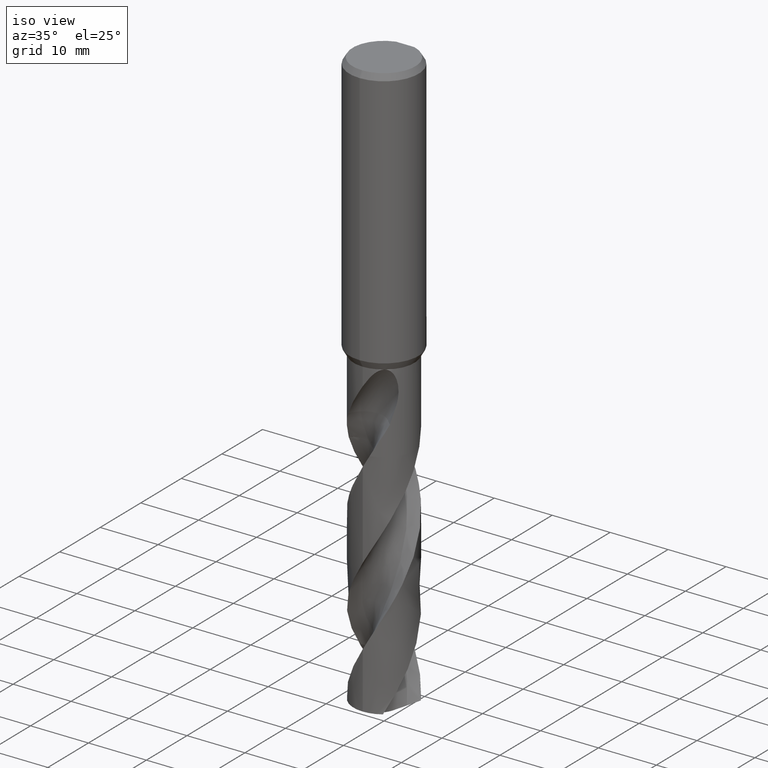
[diagram: clean part render]
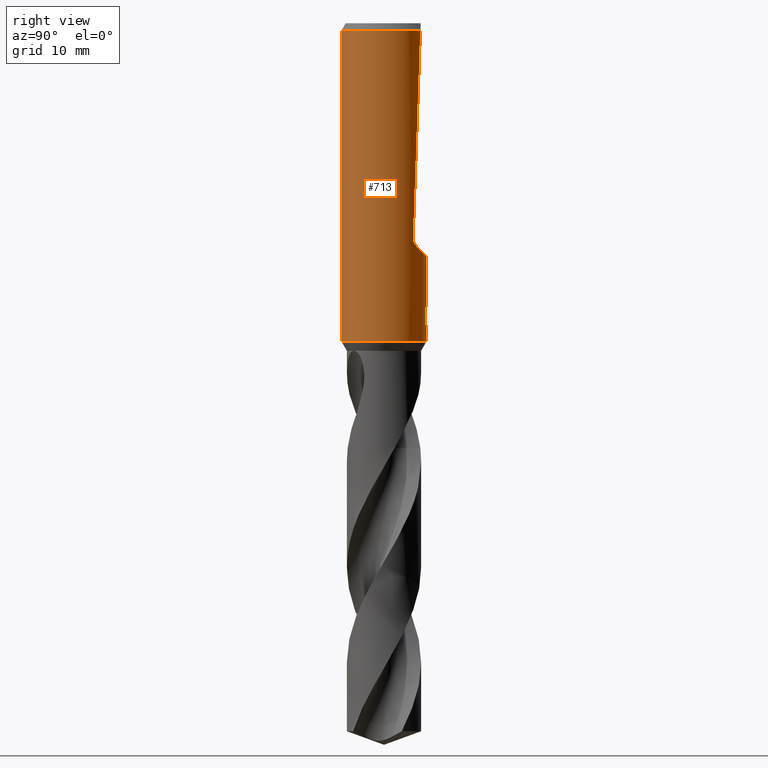
[diagram: tour spotlight — one face highlighted and labeled with its STEP entity id]
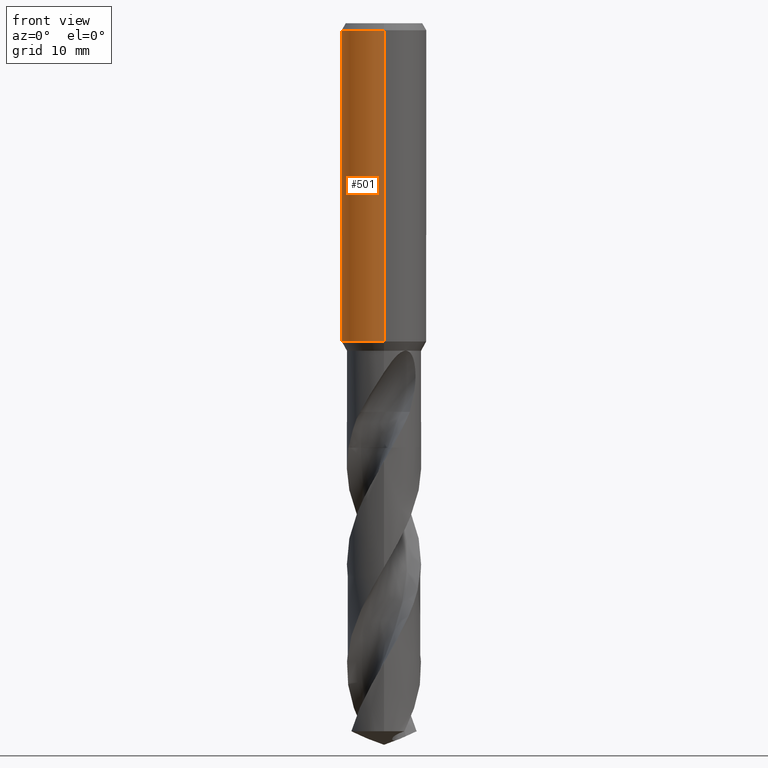
[diagram: tour spotlight — one face highlighted and labeled with its STEP entity id]
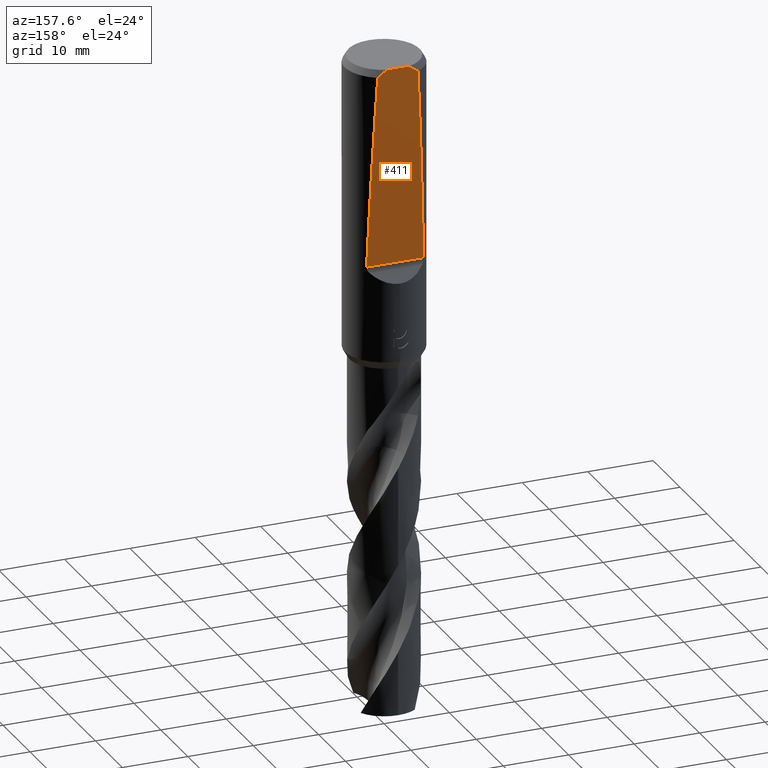
[diagram: tour spotlight — one face highlighted and labeled with its STEP entity id]
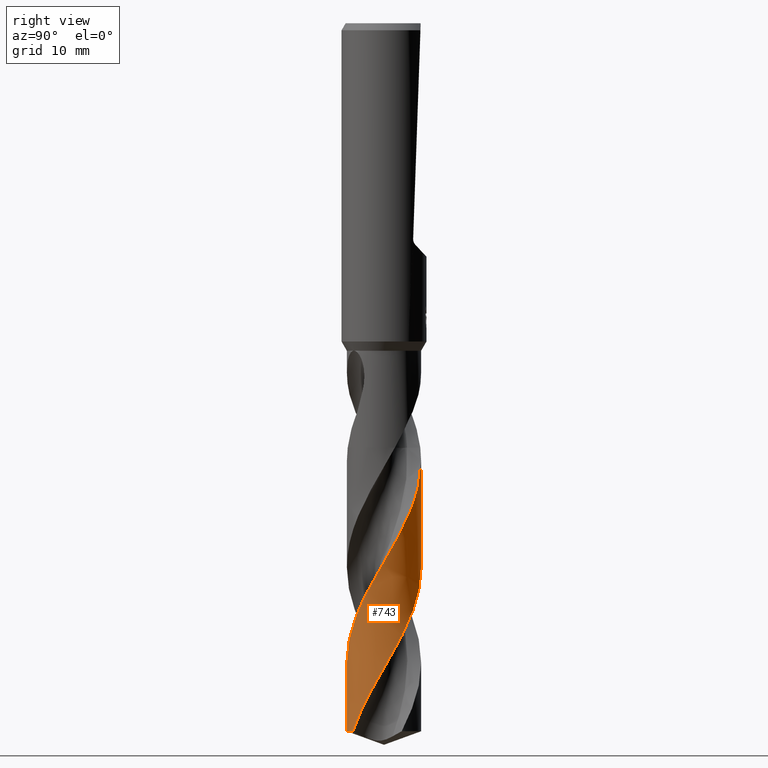
[diagram: tour spotlight — one face highlighted and labeled with its STEP entity id]
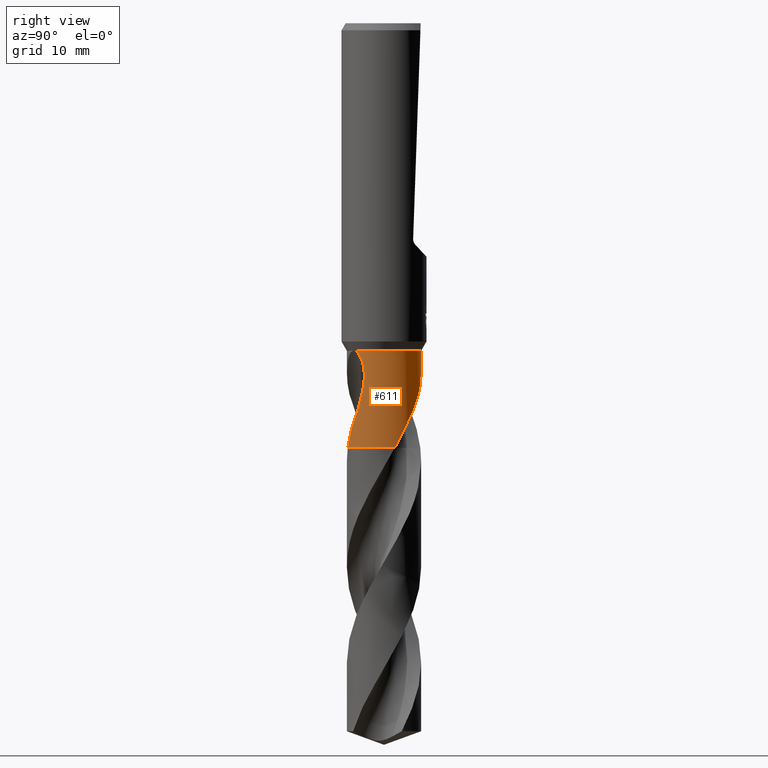
[diagram: tour spotlight — one face highlighted and labeled with its STEP entity id]
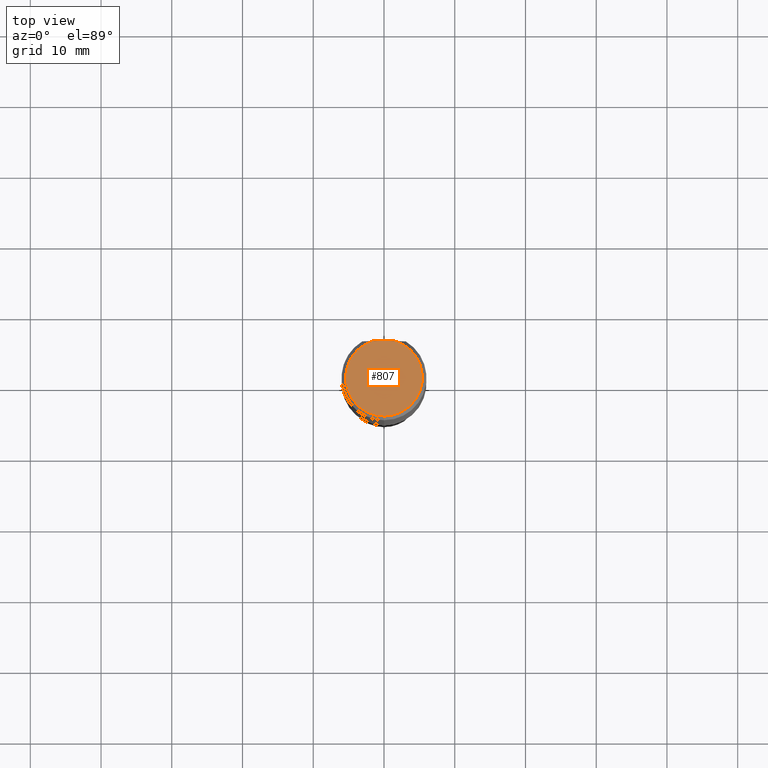
[diagram: tour spotlight — one face highlighted and labeled with its STEP entity id]
A machine part: a face-by-face anatomy tour. The part has 53 B-rep faces; the first image is the clean iso view, then the 6 largest visible faces are spotlighted one at a time (largest first), each with its STEP entity span.

Face 1 — right view, entity #713. In plain terms, the highlighted cylindrical surface (partial cylindrical patch) has radius 6 mm, axis along (-0, -0, 1).
Definition (entity closure, byte-faithful):
#319=VERTEX_POINT('',#906);
#355=EDGE_CURVE('',#393,#681,#945,.T.);
#373=VERTEX_POINT('',#964);
#379=VERTEX_POINT('',#970);
#391=EDGE_CURVE('',#589,#585,#984,.T.);
#393=VERTEX_POINT('',#986);
#503=EDGE_CURVE('',#717,#603,#1109,.T.);
#509=EDGE_CURVE('',#659,#701,#1115,.T.);
#523=EDGE_CURVE('',#585,#877,#1131,.T.);
#571=EDGE_CURVE('',#817,#379,#1180,.T.);
#577=EDGE_CURVE('',#775,#373,#1186,.T.);
#581=EDGE_CURVE('',#373,#393,#1190,.T.);
#585=VERTEX_POINT('',#1194);
#589=VERTEX_POINT('',#1198);
#591=EDGE_CURVE('',#701,#717,#1200,.T.);
#603=VERTEX_POINT('',#1214);
#605=EDGE_CURVE('',#877,#659,#1216,.T.);
#619=EDGE_CURVE('',#379,#319,#1233,.T.);
#653=EDGE_CURVE('',#603,#687,#1268,.T.);
#659=VERTEX_POINT('',#1275);
#677=EDGE_CURVE('',#775,#687,#1295,.T.);
#681=VERTEX_POINT('',#1299);
#687=VERTEX_POINT('',#1306);
#701=VERTEX_POINT('',#1320);
#713=ADVANCED_FACE('',(#1334),#1335,.T.);
#717=VERTEX_POINT('',#1339);
#775=VERTEX_POINT('',#1402);
#791=EDGE_CURVE('',#589,#817,#1420,.T.);
#817=VERTEX_POINT('',#1448);
#847=EDGE_CURVE('',#681,#319,#1481,.T.);
#877=VERTEX_POINT('',#1517);
#906=CARTESIAN_POINT('',(7.34763812293426E-016,-6.0,-1.0));
#945=ELLIPSE('',#1609,171.922250087064,6.0);
#964=CARTESIAN_POINT('',(4.03203957298941,4.44327096651187,-31.3318538858998));
#970=CARTESIAN_POINT('',(7.34763812293426E-016,-6.0,-45.0));
#984=B_SPLINE_CURVE_WITH_KNOTS('',3,(#2196,#2197,#2198,#2199,#2200,#2201,#2202,#2203,#2204,#2205,#2206,#2207,#2208,#2209,#2210,#2211),.UNSPECIFIED.,.F.,.F.,(4,2,2,2,2,2,2,4),(5.86022917063912,6.16870405720903,6.47725847293827,6.78581288866751,7.09436730439676,7.402921720126,7.71116114554584,8.01940057096568),.UNSPECIFIED.);
#986=CARTESIAN_POINT('',(4.36029766032865,4.12162641603196,-30.4715764577818));
#1109=B_SPLINE_CURVE_WITH_KNOTS('',3,(#4422,#4423,#4424,#4425,#4426,#4427,#4428,#4429,#4430,#4431),.UNSPECIFIED.,.F.,.F.,(4,2,2,2,4),(0.616864768993534,0.925297153490302,1.23372953798707,1.54196894672892,1.85020835547076),.UNSPECIFIED.);
#1115=B_SPLINE_CURVE_WITH_KNOTS('',3,(#4498,#4499,#4500,#4501,#4502,#4503,#4504,#4505,#4506,#4507),.UNSPECIFIED.,.F.,.F.,(4,2,2,2,4),(8.01939987363182,8.32763927191416,8.6358786701965,8.94431104401671,9.25274341783691),.UNSPECIFIED.);
#1131=ELLIPSE('',#5181,18.2879674402186,6.0);
#1180=CIRCLE('',#6038,6.0);
#1186=ELLIPSE('',#6130,8.79767511383775,6.0);
#1190=B_SPLINE_CURVE_WITH_KNOTS('',3,(#6135,#6136,#6137,#6138,#6139,#6140,#6141,#6142,#6143,#6144),.UNSPECIFIED.,.F.,.F.,(4,2,2,2,4),(14.9363612949035,15.3656544388401,15.6655052675592,15.9653560962782,16.2652069249973),.UNSPECIFIED.);
#1194=CARTESIAN_POINT('',(0.29010312703583,5.99298257762227,-42.9998328990228));
#1198=CARTESIAN_POINT('',(-1.000126236349E-015,6.0,-43.0310253601033));
#1200=LINE('',#6161,#6162);
#1214=CARTESIAN_POINT('',(0.799431726384364,5.94650392372275,-40.000000276873));
#1216=LINE('',#6207,#6208);
#1233=LINE('',#6464,#6465);
#1268=B_SPLINE_CURVE_WITH_KNOTS('',3,(#6621,#6622,#6623,#6624,#6625,#6626,#6627,#6628,#6629,#6630,#6631,#6632,#6633,#6634,#6635,#6636,#6637,#6638,#6639,#6640,#6641,#6642,#6643,#6644,#6645,#6646,#6647),.UNSPECIFIED.,.F.,.F.,(4,2,3,2,2,2,2,2,2,2,2,2,4),(-0.542204134993822,-0.271102067496911,0.0,0.271102067496911,0.542204134993821,0.813702489471782,1.08520084394974,1.35603748887758,1.62687413380543,1.89790609484719,2.16893805588896,2.43997001693073,2.71100197797249),.UNSPECIFIED.);
#1275=CARTESIAN_POINT('',(0.873560781758956,5.93606701112552,-42.7587351791531));
#1295=LINE('',#6941,#6942);
#1299=CARTESIAN_POINT('',(3.07722195520084,5.15079654407257,-1.0));
#1306=CARTESIAN_POINT('',(4.30282158127811E-015,6.0,-41.0232688117743));
#1320=CARTESIAN_POINT('',(1.33721006514658,5.84909131760402,-42.2901657003257));
#1334=FACE_OUTER_BOUND('',#7045,.T.);
#1335=CYLINDRICAL_SURFACE('',#7046,6.0);
#1339=CARTESIAN_POINT('',(1.33721006514658,5.84909131760402,-40.5150484364821));
#1402=CARTESIAN_POINT('',(-7.34763812293426E-016,6.0,-33.0012413913994));
#1420=LINE('',#8261,#8262);
#1448=CARTESIAN_POINT('',(0.0,6.0,-45.0));
#1481=CIRCLE('',#9062,6.0);
#1517=CARTESIAN_POINT('',(0.873560781758957,5.93606701112552,-41.3198931596091));
#1609=AXIS2_PLACEMENT_3D('',#9182,#9183,#9184);
#2196=CARTESIAN_POINT('',(-1.37942962388976,5.83927854385585,-42.3120938518854));
#2197=CARTESIAN_POINT('',(-1.3197524098915,5.85337626434356,-42.4007460556891));
#2198=CARTESIAN_POINT('',(-1.25213007147997,5.86835238153676,-42.4821006164436));
#2199=CARTESIAN_POINT('',(-1.10815476297052,5.89723538536299,-42.6261133873133));
#2200=CARTESIAN_POINT('',(-1.02679168998259,5.91217036370492,-42.6937759496578));
#2201=CARTESIAN_POINT('',(-0.849449577088966,5.94024368186983,-42.8132077327803));
#2202=CARTESIAN_POINT('',(-0.75347222810614,5.95335623661259,-42.8649855238005));
#2203=CARTESIAN_POINT('',(-0.552969605024409,5.97531551411668,-42.9482857310807));
#2204=CARTESIAN_POINT('',(-0.448275455975639,5.98416266823847,-42.9798740542996));
#2205=CARTESIAN_POINT('',(-0.237398161173605,5.99623180317797,-43.0213727490831));
#2206=CARTESIAN_POINT('',(-0.131212492151728,5.9994467834274,-43.0312723335086));
#2207=CARTESIAN_POINT('',(0.0743831578630581,6.00041865072596,-43.0312723335086));
#2208=CARTESIAN_POINT('',(0.180490238104753,5.99821260764714,-43.021392590677));
#2209=CARTESIAN_POINT('',(0.391259717323761,5.98815890288379,-42.9799476485545));
#2210=CARTESIAN_POINT('',(0.495924498667214,5.98031828233743,-42.948392857806));
#2211=CARTESIAN_POINT('',(0.596162626581452,5.9703090475006,-42.9067743263419));
#4422=CARTESIAN_POINT('',(1.47572255922527,5.81568937686614,-40.7778857706544));
#4423=CARTESIAN_POINT('',(1.43408414695966,5.82625505721574,-40.6776366099009));
#4424=CARTESIAN_POINT('',(1.38231447896357,5.83891732292942,-40.5816487554591));
#4425=CARTESIAN_POINT('',(1.26287133719122,5.86591039891312,-40.404259737123));
#4426=CARTESIAN_POINT('',(1.19518872778899,5.88021296420216,-40.3228604278537));
#4427=CARTESIAN_POINT('',(1.05112183874896,5.90766593069519,-40.1788296843787));
#4428=CARTESIAN_POINT('',(0.969743089830991,5.92179330445672,-40.111188656323));
#4429=CARTESIAN_POINT('',(0.792381475667972,5.94812316600191,-39.9918074082397));
#4430=CARTESIAN_POINT('',(0.696400454612605,5.96029984760923,-39.9400587582751));
#4431=CARTESIAN_POINT('',(0.596162331669374,5.97030907694891,-39.8984402290046));
#4498=CARTESIAN_POINT('',(0.596162353925366,5.97030907472655,-42.9067738917094));
#4499=CARTESIAN_POINT('',(0.696400473442532,5.96029984535159,-42.865155363849));
#4500=CARTESIAN_POINT('',(0.792381491214139,5.94812316388512,-42.8134067156396));
#4501=CARTESIAN_POINT('',(0.969743099309515,5.92179330285852,-42.6940254716034));
#4502=CARTESIAN_POINT('',(1.05112184544356,5.90766592947307,-42.6263844458399));
#4503=CARTESIAN_POINT('',(1.19518872950838,5.8802129638209,-42.4823537072831));
#4504=CARTESIAN_POINT('',(1.26287133655555,5.86591039902768,-42.4009544008203));
#4505=CARTESIAN_POINT('',(1.38231447417469,5.83891732404075,-42.2235653885997));
#4506=CARTESIAN_POINT('',(1.43408414037219,5.82625505882607,-42.1275775374671));
#4507=CARTESIAN_POINT('',(1.47572255119055,5.81568937890493,-42.0273283801715));
#5181=AXIS2_PLACEMENT_3D('',#9374,#9375,#9376);
#6038=AXIS2_PLACEMENT_3D('',#9389,#9390,#9391);
#6130=AXIS2_PLACEMENT_3D('',#9392,#9393,#9394);
#6135=CARTESIAN_POINT('',(3.96813764578173,4.50043149310484,-31.3891492725556));
#6136=CARTESIAN_POINT('',(4.06633287190667,4.41385040073717,-31.3080288859149));
#6137=CARTESIAN_POINT('',(4.15124574691762,4.33301246290296,-31.2067039082796));
#6138=CARTESIAN_POINT('',(4.25828175059035,4.22739406357309,-31.0157579119505));
#6139=CARTESIAN_POINT('',(4.29706731284018,4.18767039691702,-30.9216565987402));
#6140=CARTESIAN_POINT('',(4.34841966946134,4.13432184285693,-30.7205067334657));
#6141=CARTESIAN_POINT('',(4.36098853845955,4.12089540845488,-30.6134061300645));
#6142=CARTESIAN_POINT('',(4.36098853845955,4.12089540845488,-30.4135055775851));
#6143=CARTESIAN_POINT('',(4.34841966946134,4.13432184285693,-30.306404974184));
#6144=CARTESIAN_POINT('',(4.32274349115065,4.160996119887,-30.2058300415468));
#6161=CARTESIAN_POINT('',(1.33721006514658,5.84909131760402,-41.4026070684039));
#6162=VECTOR('',#9396,1.0);
#6207=CARTESIAN_POINT('',(0.873560781758957,5.93606701112552,-42.0393141693811));
#6208=VECTOR('',#9417,1.0);
#6464=CARTESIAN_POINT('',(7.34763812293426E-016,-6.0,-23.0));
#6465=VECTOR('',#9454,1.0);
#6621=CARTESIAN_POINT('',(0.665038279511986,5.96302977409838,-39.8135117776465));
#6622=CARTESIAN_POINT('',(0.728716101835783,5.95592798339707,-39.8772374280006));
#6623=CARTESIAN_POINT('',(0.783974665019777,5.94867668154847,-39.9579557273851));
#6624=CARTESIAN_POINT('',(0.857320507570535,5.93854966257537,-40.1349694534753));
#6625=CARTESIAN_POINT('',(0.875400981188567,5.93579591311343,-40.2312746567545));
#6626=CARTESIAN_POINT('',(0.875400981188567,5.93579591311343,-40.3216420125868));
#6627=CARTESIAN_POINT('',(0.875400981188567,5.93579591311343,-40.4120093684191));
#6628=CARTESIAN_POINT('',(0.857320507570535,5.93854966257537,-40.5083145716983));
#6629=CARTESIAN_POINT('',(0.783974665019777,5.94867668154847,-40.6853282977885));
#6630=CARTESIAN_POINT('',(0.728716101835784,5.95592798339707,-40.766046597173));
#6631=CARTESIAN_POINT('',(0.601267375301349,5.97014194593481,-40.8935910496813));
#6632=CARTESIAN_POINT('',(0.52050089626908,5.97804010501944,-40.9489349030958));
#6633=CARTESIAN_POINT('',(0.343370231624616,5.99082478161003,-41.0224010244896));
#6634=CARTESIAN_POINT('',(0.246995041657254,5.9955970178221,-41.0405166027747));
#6635=CARTESIAN_POINT('',(0.066278235124748,6.00031311449822,-41.0405166027747));
#6636=CARTESIAN_POINT('',(-0.0299950498794653,6.00057849353559,-41.0224799292738));
#6637=CARTESIAN_POINT('',(-0.207070170783241,5.99707961466003,-40.949146253936));
#6638=CARTESIAN_POINT('',(-0.287875322309355,5.99343072940708,-40.8938517989794));
#6639=CARTESIAN_POINT('',(-0.415515670858363,5.98593657913032,-40.7662728045656));
#6640=CARTESIAN_POINT('',(-0.470860335647626,5.98160913098325,-40.6854535363062));
#6641=CARTESIAN_POINT('',(-0.544278095376138,5.97537602271911,-40.5083128294691));
#6642=CARTESIAN_POINT('',(-0.562348199187247,5.97358891311336,-40.4119859996007));
#6643=CARTESIAN_POINT('',(-0.562348199187247,5.97358891311336,-40.2312980255729));
#6644=CARTESIAN_POINT('',(-0.544278095376141,5.97537602271911,-40.1349711957045));
#6645=CARTESIAN_POINT('',(-0.470860335647634,5.98160913098325,-39.9578304888674));
#6646=CARTESIAN_POINT('',(-0.415515670858364,5.98593657913032,-39.8770112206079));
#6647=CARTESIAN_POINT('',(-0.351672492652108,5.98968500489899,-39.8131987305268));
#6941=CARTESIAN_POINT('',(-7.34763812293426E-016,6.0,-23.0));
#6942=VECTOR('',#9494,1.0);
#7045=EDGE_LOOP('',(#9535,#9536,#9537,#9538,#9539,#9540,#9541,#9542,#9543,#9544,#9545,#9546,#9547,#9548,#9549));
#7046=AXIS2_PLACEMENT_3D('',#9550,#9551,#9552);
#8261=CARTESIAN_POINT('',(-7.34763812293426E-016,6.0,-23.0));
#8262=VECTOR('',#9633,1.0);
#9062=AXIS2_PLACEMENT_3D('',#9686,#9687,#9688);
#9182=CARTESIAN_POINT('',(0.0,0.0,-148.49951444483));
#9183=DIRECTION('',(0.0,-0.999390827019096,0.0348994967025007));
#9184=DIRECTION('',(0.0,0.0348994967025007,0.999390827019096));
#9374=CARTESIAN_POINT('',(0.0,0.0,-43.8351219173269));
#9375=DIRECTION('',(0.944648353914092,0.0,-0.328084573619969));
#9376=DIRECTION('',(0.328084573619969,-0.0,0.944648353914092));
#9389=CARTESIAN_POINT('',(0.0,0.0,-45.0));
#9390=DIRECTION('',(0.0,0.0,-1.0));
#9391=DIRECTION('',(0.0,1.0,0.0));
#9392=CARTESIAN_POINT('',(0.0,0.0,-26.5670291312513));
#9393=DIRECTION('',(0.0,-0.73135370161917,-0.681998360062499));
#9394=DIRECTION('',(0.0,0.681998360062499,-0.73135370161917));
#9396=DIRECTION('',(-0.0,-0.0,1.0));
#9417=DIRECTION('',(0.0,0.0,-1.0));
#9454=DIRECTION('',(-0.0,-0.0,1.0));
#9494=DIRECTION('',(0.0,0.0,-1.0));
#9535=ORIENTED_EDGE('',*,*,#677,.F.);
#9536=ORIENTED_EDGE('',*,*,#577,.T.);
#9537=ORIENTED_EDGE('',*,*,#581,.T.);
#9538=ORIENTED_EDGE('',*,*,#355,.T.);
#9539=ORIENTED_EDGE('',*,*,#847,.T.);
#9540=ORIENTED_EDGE('',*,*,#619,.F.);
#9541=ORIENTED_EDGE('',*,*,#571,.F.);
#9542=ORIENTED_EDGE('',*,*,#791,.F.);
#9543=ORIENTED_EDGE('',*,*,#391,.T.);
#9544=ORIENTED_EDGE('',*,*,#523,.T.);
#9545=ORIENTED_EDGE('',*,*,#605,.T.);
#9546=ORIENTED_EDGE('',*,*,#509,.T.);
#9547=ORIENTED_EDGE('',*,*,#591,.T.);
#9548=ORIENTED_EDGE('',*,*,#503,.T.);
#9549=ORIENTED_EDGE('',*,*,#653,.T.);
#9550=CARTESIAN_POINT('',(0.0,0.0,-23.0));
#9551=DIRECTION('',(-0.0,-0.0,1.0));
#9552=DIRECTION('',(0.0,1.0,0.0));
#9633=DIRECTION('',(0.0,0.0,-1.0));
#9686=CARTESIAN_POINT('',(0.0,0.0,-1.0));
#9687=DIRECTION('',(0.0,0.0,-1.0));
#9688=DIRECTION('',(0.0,1.0,0.0));

Face 2 — front view, entity #501. In plain terms, the highlighted cylindrical surface (partial cylindrical patch) has radius 6 mm, axis along (-0, -0, 1).
Definition (entity closure, byte-faithful):
#319=VERTEX_POINT('',#906);
#347=VERTEX_POINT('',#936);
#363=VERTEX_POINT('',#954);
#379=VERTEX_POINT('',#970);
#439=VERTEX_POINT('',#1036);
#441=EDGE_CURVE('',#645,#439,#1038,.T.);
#449=EDGE_CURVE('',#379,#817,#1046,.T.);
#471=EDGE_CURVE('',#319,#561,#1070,.T.);
#501=ADVANCED_FACE('',(#1106),#1107,.T.);
#511=VERTEX_POINT('',#1117);
#535=EDGE_CURVE('',#629,#363,#1144,.T.);
#539=EDGE_CURVE('',#551,#589,#1148,.T.);
#551=VERTEX_POINT('',#1160);
#561=VERTEX_POINT('',#1170);
#589=VERTEX_POINT('',#1198);
#613=EDGE_CURVE('',#511,#775,#1226,.T.);
#619=EDGE_CURVE('',#379,#319,#1233,.T.);
#629=VERTEX_POINT('',#1243);
#645=VERTEX_POINT('',#1260);
#655=EDGE_CURVE('',#347,#551,#1270,.T.);
#677=EDGE_CURVE('',#775,#687,#1295,.T.);
#687=VERTEX_POINT('',#1306);
#729=VERTEX_POINT('',#1351);
#757=EDGE_CURVE('',#687,#629,#1382,.T.);
#775=VERTEX_POINT('',#1402);
#791=EDGE_CURVE('',#589,#817,#1420,.T.);
#799=EDGE_CURVE('',#729,#511,#1429,.T.);
#817=VERTEX_POINT('',#1448);
#831=EDGE_CURVE('',#439,#347,#1462,.T.);
#857=EDGE_CURVE('',#363,#645,#1494,.T.);
#869=EDGE_CURVE('',#561,#729,#1507,.T.);
#906=CARTESIAN_POINT('',(7.34763812293426E-016,-6.0,-1.0));
#936=CARTESIAN_POINT('',(-7.34750035790944E-016,6.0,-41.7128911336578));
#954=CARTESIAN_POINT('',(-0.562333990228013,5.97359025071474,-40.3171221986971));
#970=CARTESIAN_POINT('',(7.34763812293426E-016,-6.0,-45.0));
#1036=CARTESIAN_POINT('',(1.23752563440958E-015,6.0,-41.5000801551881));
#1038=B_SPLINE_CURVE_WITH_KNOTS('',3,(#3059,#3060,#3061,#3062,#3063,#3064,#3065,#3066,#3067,#3068,#3069,#3070,#3071,#3072),.UNSPECIFIED.,.F.,.F.,(4,2,2,2,2,2,4),(3.12901819529899,3.57583262703438,4.02264705876978,4.46946149050517,4.91564920039673,5.36183691028829,5.8097355416915),.UNSPECIFIED.);
#1046=CIRCLE('',#3141,6.0);
#1070=CIRCLE('',#4001,6.0);
#1106=FACE_OUTER_BOUND('',#4418,.T.);
#1107=CYLINDRICAL_SURFACE('',#4419,6.0);
#1117=CARTESIAN_POINT('',(-4.03203957298941,4.44327096651187,-31.3318538858998));
#1144=B_SPLINE_CURVE_WITH_KNOTS('',3,(#5898,#5899,#5900,#5901,#5902,#5903,#5904,#5905,#5906,#5907,#5908,#5909,#5910,#5911,#5912,#5913,#5914,#5915,#5916,#5917,#5918,#5919,#5920,#5921,#5922,#5923,#5924),.UNSPECIFIED.,.F.,.F.,(4,2,3,2,2,2,2,2,2,2,2,2,4),(-0.542204134993822,-0.271102067496911,0.0,0.271102067496911,0.542204134993821,0.813702489471782,1.08520084394974,1.35603748887758,1.62687413380543,1.89790609484719,2.16893805588896,2.43997001693073,2.71100197797249),.UNSPECIFIED.);
#1148=B_SPLINE_CURVE_WITH_KNOTS('',3,(#5929,#5930,#5931,#5932,#5933,#5934,#5935,#5936,#5937,#5938,#5939,#5940,#5941,#5942,#5943,#5944),.UNSPECIFIED.,.F.,.F.,(4,2,2,2,2,2,2,4),(5.86022917063912,6.16870405720903,6.47725847293827,6.78581288866751,7.09436730439676,7.402921720126,7.71116114554584,8.01940057096568),.UNSPECIFIED.);
#1160=CARTESIAN_POINT('',(-1.337052752443,5.84912727996105,-42.3720803908795));
#1170=CARTESIAN_POINT('',(-3.07722195520084,5.15079654407257,-1.0));
#1198=CARTESIAN_POINT('',(-1.000126236349E-015,6.0,-43.0310253601033));
#1226=ELLIPSE('',#6221,8.79767511383775,6.0);
#1233=LINE('',#6464,#6465);
#1243=CARTESIAN_POINT('',(-0.486378944383043,5.98025380083996,-40.6432837483006));
#1260=CARTESIAN_POINT('',(-1.0350734039088,5.91004425097822,-40.3171221986971));
#1270=ELLIPSE('',#6650,6.68957059225716,6.0);
#1295=LINE('',#6941,#6942);
#1306=CARTESIAN_POINT('',(4.30282158127811E-015,6.0,-41.0232688117743));
#1351=CARTESIAN_POINT('',(-4.36029766032865,4.12162641603196,-30.4715764577818));
#1382=B_SPLINE_CURVE_WITH_KNOTS('',3,(#7146,#7147,#7148,#7149,#7150,#7151,#7152,#7153,#7154,#7155,#7156,#7157,#7158,#7159,#7160,#7161,#7162,#7163,#7164,#7165,#7166,#7167,#7168,#7169,#7170,#7171,#7172),.UNSPECIFIED.,.F.,.F.,(4,2,3,2,2,2,2,2,2,2,2,2,4),(-0.542204134993822,-0.271102067496911,0.0,0.271102067496911,0.542204134993821,0.813702489471782,1.08520084394974,1.35603748887758,1.62687413380543,1.89790609484719,2.16893805588896,2.43997001693073,2.71100197797249),.UNSPECIFIED.);
#1402=CARTESIAN_POINT('',(-7.34763812293426E-016,6.0,-33.0012413913994));
#1420=LINE('',#8261,#8262);
#1429=B_SPLINE_CURVE_WITH_KNOTS('',3,(#8272,#8273,#8274,#8275,#8276,#8277,#8278,#8279,#8280,#8281),.UNSPECIFIED.,.F.,.F.,(4,2,2,2,4),(5.02193453670703,5.32178536542608,5.62163619414512,5.92148702286417,6.35078016680085),.UNSPECIFIED.);
#1448=CARTESIAN_POINT('',(0.0,6.0,-45.0));
#1462=LINE('',#8404,#8405);
#1494=CIRCLE('',#9080,6.0);
#1507=ELLIPSE('',#9105,171.922250087064,6.0);
#3059=CARTESIAN_POINT('',(-0.94480385302947,5.92514520322504,-39.872959764165));
#3060=CARTESIAN_POINT('',(-1.00527134460613,5.91550326140901,-40.018714084793));
#3061=CARTESIAN_POINT('',(-1.03510901790186,5.91003801350366,-40.177363716821));
#3062=CARTESIAN_POINT('',(-1.03510901790186,5.91003801350366,-40.4752400046446));
#3063=CARTESIAN_POINT('',(-1.00527134460613,5.91550326140901,-40.6338896366726));
#3064=CARTESIAN_POINT('',(-0.884336361452813,5.93478714504107,-40.9253982779286));
#3065=CARTESIAN_POINT('',(-0.793255124431118,5.94827036688117,-41.0582860460074));
#3066=CARTESIAN_POINT('',(-0.583383143066729,5.97250423473111,-41.2679818745928));
#3067=CARTESIAN_POINT('',(-0.450548678141594,5.98483728073992,-41.3589178059373));
#3068=CARTESIAN_POINT('',(-0.159231245503483,5.9996597235035,-41.4796190611952));
#3069=CARTESIAN_POINT('',(-0.000726257391805651,6.00184303846568,-41.5093686300866));
#3070=CARTESIAN_POINT('',(0.297211894038787,5.99449376042891,-41.5093686300866));
#3071=CARTESIAN_POINT('',(0.455980995840601,5.98444103025712,-41.4794145753496));
#3072=CARTESIAN_POINT('',(0.601711422200172,5.96975237044166,-41.418892629059));
#3141=AXIS2_PLACEMENT_3D('',#9260,#9261,#9262);
#4001=AXIS2_PLACEMENT_3D('',#9286,#9287,#9288);
#4418=EDGE_LOOP('',(#9340,#9341,#9342,#9343,#9344,#9345,#9346,#9347,#9348,#9349,#9350,#9351,#9352,#9353,#9354));
#4419=AXIS2_PLACEMENT_3D('',#9355,#9356,#9357);
#5898=CARTESIAN_POINT('',(0.665038279511986,5.96302977409838,-39.8135117776465));
#5899=CARTESIAN_POINT('',(0.728716101835783,5.95592798339707,-39.8772374280006));
#5900=CARTESIAN_POINT('',(0.783974665019777,5.94867668154847,-39.9579557273851));
#5901=CARTESIAN_POINT('',(0.857320507570535,5.93854966257537,-40.1349694534753));
#5902=CARTESIAN_POINT('',(0.875400981188567,5.93579591311343,-40.2312746567545));
#5903=CARTESIAN_POINT('',(0.875400981188567,5.93579591311343,-40.3216420125868));
#5904=CARTESIAN_POINT('',(0.875400981188567,5.93579591311343,-40.4120093684191));
#5905=CARTESIAN_POINT('',(0.857320507570535,5.93854966257537,-40.5083145716983));
#5906=CARTESIAN_POINT('',(0.783974665019777,5.94867668154847,-40.6853282977885));
#5907=CARTESIAN_POINT('',(0.728716101835784,5.95592798339707,-40.766046597173));
#5908=CARTESIAN_POINT('',(0.601267375301349,5.97014194593481,-40.8935910496813));
#5909=CARTESIAN_POINT('',(0.52050089626908,5.97804010501944,-40.9489349030958));
#5910=CARTESIAN_POINT('',(0.343370231624616,5.99082478161003,-41.0224010244896));
#5911=CARTESIAN_POINT('',(0.246995041657254,5.9955970178221,-41.0405166027747));
#5912=CARTESIAN_POINT('',(0.066278235124748,6.00031311449822,-41.0405166027747));
#5913=CARTESIAN_POINT('',(-0.0299950498794653,6.00057849353559,-41.0224799292738));
#5914=CARTESIAN_POINT('',(-0.207070170783241,5.99707961466003,-40.949146253936));
#5915=CARTESIAN_POINT('',(-0.287875322309355,5.99343072940708,-40.8938517989794));
#5916=CARTESIAN_POINT('',(-0.415515670858363,5.98593657913032,-40.7662728045656));
#5917=CARTESIAN_POINT('',(-0.470860335647626,5.98160913098325,-40.6854535363062));
#5918=CARTESIAN_POINT('',(-0.544278095376138,5.97537602271911,-40.5083128294691));
#5919=CARTESIAN_POINT('',(-0.562348199187247,5.97358891311336,-40.4119859996007));
#5920=CARTESIAN_POINT('',(-0.562348199187247,5.97358891311336,-40.2312980255729));
#5921=CARTESIAN_POINT('',(-0.544278095376141,5.97537602271911,-40.1349711957045));
#5922=CARTESIAN_POINT('',(-0.470860335647634,5.98160913098325,-39.9578304888674));
#5923=CARTESIAN_POINT('',(-0.415515670858364,5.98593657913032,-39.8770112206079));
#5924=CARTESIAN_POINT('',(-0.351672492652108,5.98968500489899,-39.8131987305268));
#5929=CARTESIAN_POINT('',(-1.37942962388976,5.83927854385585,-42.3120938518854));
#5930=CARTESIAN_POINT('',(-1.3197524098915,5.85337626434356,-42.4007460556891));
#5931=CARTESIAN_POINT('',(-1.25213007147997,5.86835238153676,-42.4821006164436));
#5932=CARTESIAN_POINT('',(-1.10815476297052,5.89723538536299,-42.6261133873133));
#5933=CARTESIAN_POINT('',(-1.02679168998259,5.91217036370492,-42.6937759496578));
#5934=CARTESIAN_POINT('',(-0.849449577088966,5.94024368186983,-42.8132077327803));
#5935=CARTESIAN_POINT('',(-0.75347222810614,5.95335623661259,-42.8649855238005));
#5936=CARTESIAN_POINT('',(-0.552969605024409,5.97531551411668,-42.9482857310807));
#5937=CARTESIAN_POINT('',(-0.448275455975639,5.98416266823847,-42.9798740542996));
#5938=CARTESIAN_POINT('',(-0.237398161173605,5.99623180317797,-43.0213727490831));
#5939=CARTESIAN_POINT('',(-0.131212492151728,5.9994467834274,-43.0312723335086));
#5940=CARTESIAN_POINT('',(0.0743831578630581,6.00041865072596,-43.0312723335086));
#5941=CARTESIAN_POINT('',(0.180490238104753,5.99821260764714,-43.021392590677));
#5942=CARTESIAN_POINT('',(0.391259717323761,5.98815890288379,-42.9799476485545));
#5943=CARTESIAN_POINT('',(0.495924498667214,5.98031828233743,-42.948392857806));
#5944=CARTESIAN_POINT('',(0.596162626581452,5.9703090475006,-42.9067743263419));
#6221=AXIS2_PLACEMENT_3D('',#9446,#9447,#9448);
#6464=CARTESIAN_POINT('',(7.34763812293426E-016,-6.0,-23.0));
#6465=VECTOR('',#9454,1.0);
#6650=AXIS2_PLACEMENT_3D('',#9464,#9465,#9466);
#6941=CARTESIAN_POINT('',(-7.34763812293426E-016,6.0,-23.0));
#6942=VECTOR('',#9494,1.0);
#7146=CARTESIAN_POINT('',(0.665038279511986,5.96302977409838,-39.8135117776465));
#7147=CARTESIAN_POINT('',(0.728716101835783,5.95592798339707,-39.8772374280006));
#7148=CARTESIAN_POINT('',(0.783974665019777,5.94867668154847,-39.9579557273851));
#7149=CARTESIAN_POINT('',(0.857320507570535,5.93854966257537,-40.1349694534753));
#7150=CARTESIAN_POINT('',(0.875400981188567,5.93579591311343,-40.2312746567545));
#7151=CARTESIAN_POINT('',(0.875400981188567,5.93579591311343,-40.3216420125868));
#7152=CARTESIAN_POINT('',(0.875400981188567,5.93579591311343,-40.4120093684191));
#7153=CARTESIAN_POINT('',(0.857320507570535,5.93854966257537,-40.5083145716983));
#7154=CARTESIAN_POINT('',(0.783974665019777,5.94867668154847,-40.6853282977885));
#7155=CARTESIAN_POINT('',(0.728716101835784,5.95592798339707,-40.766046597173));
#7156=CARTESIAN_POINT('',(0.601267375301349,5.97014194593481,-40.8935910496813));
#7157=CARTESIAN_POINT('',(0.52050089626908,5.97804010501944,-40.9489349030958));
#7158=CARTESIAN_POINT('',(0.343370231624616,5.99082478161003,-41.0224010244896));
#7159=CARTESIAN_POINT('',(0.246995041657254,5.9955970178221,-41.0405166027747));
#7160=CARTESIAN_POINT('',(0.066278235124748,6.00031311449822,-41.0405166027747));
#7161=CARTESIAN_POINT('',(-0.0299950498794653,6.00057849353559,-41.0224799292738));
#7162=CARTESIAN_POINT('',(-0.207070170783241,5.99707961466003,-40.949146253936));
#7163=CARTESIAN_POINT('',(-0.287875322309355,5.99343072940708,-40.8938517989794));
#7164=CARTESIAN_POINT('',(-0.415515670858363,5.98593657913032,-40.7662728045656));
#7165=CARTESIAN_POINT('',(-0.470860335647626,5.98160913098325,-40.6854535363062));
#7166=CARTESIAN_POINT('',(-0.544278095376138,5.97537602271911,-40.5083128294691));
#7167=CARTESIAN_POINT('',(-0.562348199187247,5.97358891311336,-40.4119859996007));
#7168=CARTESIAN_POINT('',(-0.562348199187247,5.97358891311336,-40.2312980255729));
#7169=CARTESIAN_POINT('',(-0.544278095376141,5.97537602271911,-40.1349711957045));
#7170=CARTESIAN_POINT('',(-0.470860335647634,5.98160913098325,-39.9578304888674));
#7171=CARTESIAN_POINT('',(-0.415515670858364,5.98593657913032,-39.8770112206079));
#7172=CARTESIAN_POINT('',(-0.351672492652108,5.98968500489899,-39.8131987305268));
#8261=CARTESIAN_POINT('',(-7.34763812293426E-016,6.0,-23.0));
#8262=VECTOR('',#9633,1.0);
#8272=CARTESIAN_POINT('',(-4.32274349115065,4.160996119887,-30.2058300415468));
#8273=CARTESIAN_POINT('',(-4.34841966946134,4.13432184285692,-30.306404974184));
#8274=CARTESIAN_POINT('',(-4.36098853845955,4.12089540845488,-30.4135055775851));
#8275=CARTESIAN_POINT('',(-4.36098853845955,4.12089540845488,-30.6134061300645));
#8276=CARTESIAN_POINT('',(-4.34841966946134,4.13432184285693,-30.7205067334656));
#8277=CARTESIAN_POINT('',(-4.29706731284018,4.18767039691702,-30.9216565987401));
#8278=CARTESIAN_POINT('',(-4.25828175059035,4.22739406357309,-31.0157579119505));
#8279=CARTESIAN_POINT('',(-4.15124574691762,4.33301246290296,-31.2067039082796));
#8280=CARTESIAN_POINT('',(-4.06633287190667,4.41385040073717,-31.3080288859149));
#8281=CARTESIAN_POINT('',(-3.96813764578173,4.50043149310483,-31.3891492725556));
#8404=CARTESIAN_POINT('',(-7.34763812293426E-016,6.0,-23.0));
#8405=VECTOR('',#9656,1.0);
#9080=AXIS2_PLACEMENT_3D('',#9712,#9713,#9714);
#9105=AXIS2_PLACEMENT_3D('',#9727,#9728,#9729);
#9260=CARTESIAN_POINT('',(0.0,0.0,-45.0));
#9261=DIRECTION('',(0.0,0.0,-1.0));
#9262=DIRECTION('',(0.0,1.0,0.0));
#9286=CARTESIAN_POINT('',(0.0,0.0,-1.0));
#9287=DIRECTION('',(0.0,0.0,-1.0));
#9288=DIRECTION('',(0.0,1.0,0.0));
#9340=ORIENTED_EDGE('',*,*,#677,.T.);
#9341=ORIENTED_EDGE('',*,*,#757,.T.);
#9342=ORIENTED_EDGE('',*,*,#535,.T.);
#9343=ORIENTED_EDGE('',*,*,#857,.T.);
#9344=ORIENTED_EDGE('',*,*,#441,.T.);
#9345=ORIENTED_EDGE('',*,*,#831,.T.);
#9346=ORIENTED_EDGE('',*,*,#655,.T.);
#9347=ORIENTED_EDGE('',*,*,#539,.T.);
#9348=ORIENTED_EDGE('',*,*,#791,.T.);
#9349=ORIENTED_EDGE('',*,*,#449,.F.);
#9350=ORIENTED_EDGE('',*,*,#619,.T.);
#9351=ORIENTED_EDGE('',*,*,#471,.T.);
#9352=ORIENTED_EDGE('',*,*,#869,.T.);
#9353=ORIENTED_EDGE('',*,*,#799,.T.);
#9354=ORIENTED_EDGE('',*,*,#613,.T.);
#9355=CARTESIAN_POINT('',(0.0,0.0,-23.0));
#9356=DIRECTION('',(-0.0,-0.0,1.0));
#9357=DIRECTION('',(0.0,1.0,0.0));
#9446=CARTESIAN_POINT('',(0.0,0.0,-26.5670291312513));
#9447=DIRECTION('',(0.0,-0.73135370161917,-0.681998360062499));
#9448=DIRECTION('',(0.0,0.681998360062499,-0.73135370161917));
#9454=DIRECTION('',(-0.0,-0.0,1.0));
#9464=CARTESIAN_POINT('',(0.0,0.0,-41.7128911336578));
#9465=DIRECTION('',(-0.442195774284071,0.0,0.896918556617774));
#9466=DIRECTION('',(0.896918556617774,-0.0,0.442195774284071));
#9494=DIRECTION('',(0.0,0.0,-1.0));
#9633=DIRECTION('',(0.0,0.0,-1.0));
#9656=DIRECTION('',(0.0,0.0,-1.0));
#9712=CARTESIAN_POINT('',(0.0,0.0,-40.3171221986971));
#9713=DIRECTION('',(0.0,-0.0,1.0));
#9714=DIRECTION('',(0.0,1.0,0.0));
#9727=CARTESIAN_POINT('',(0.0,0.0,-148.49951444483));
#9728=DIRECTION('',(0.0,-0.999390827019096,0.0348994967025007));
#9729=DIRECTION('',(0.0,0.0348994967025007,0.999390827019096));

Face 3 — auxiliary view, entity #411. In plain terms, the highlighted planar face has unit normal (0, -0.9994, 0.0349).
Definition (entity closure, byte-faithful):
#355=EDGE_CURVE('',#393,#681,#945,.T.);
#393=VERTEX_POINT('',#986);
#411=ADVANCED_FACE('',(#1006),#1007,.F.);
#417=EDGE_CURVE('',#681,#737,#1013,.T.);
#457=EDGE_CURVE('',#737,#767,#1055,.T.);
#491=EDGE_CURVE('',#767,#561,#1095,.T.);
#561=VERTEX_POINT('',#1170);
#681=VERTEX_POINT('',#1299);
#729=VERTEX_POINT('',#1351);
#737=VERTEX_POINT('',#1360);
#753=EDGE_CURVE('',#729,#393,#1378,.T.);
#767=VERTEX_POINT('',#1392);
#869=EDGE_CURVE('',#561,#729,#1507,.T.);
#945=ELLIPSE('',#1609,171.922250087064,6.0);
#986=CARTESIAN_POINT('',(4.36029766032865,4.12162641603196,-30.4715764577818));
#1006=FACE_OUTER_BOUND('',#2297,.T.);
#1007=PLANE('',#2298);
#1013=(B_SPLINE_CURVE(2,(#2306,#2307,#2308),.UNSPECIFIED.,.F.,.F.)B_SPLINE_CURVE_WITH_KNOTS((3,3),(0.0,1.7999237201748),.UNSPECIFIED.)RATIONAL_B_SPLINE_CURVE((1.0,1.00772697155425,1.0))BOUNDED_CURVE()REPRESENTATION_ITEM('')GEOMETRIC_REPRESENTATION_ITEM()CURVE());
#1055=LINE('',#3213,#3214);
#1095=(B_SPLINE_CURVE(2,(#4388,#4389,#4390),.UNSPECIFIED.,.F.,.F.)B_SPLINE_CURVE_WITH_KNOTS((3,3),(0.0,1.7999237201748),.UNSPECIFIED.)RATIONAL_B_SPLINE_CURVE((1.0,1.00772697155425,1.0))BOUNDED_CURVE()REPRESENTATION_ITEM('')GEOMETRIC_REPRESENTATION_ITEM()CURVE());
#1170=CARTESIAN_POINT('',(-3.07722195520084,5.15079654407257,-1.0));
#1299=CARTESIAN_POINT('',(3.07722195520084,5.15079654407257,-1.0));
#1351=CARTESIAN_POINT('',(-4.36029766032865,4.12162641603196,-30.4715764577818));
#1360=CARTESIAN_POINT('',(1.58539144909296,5.18571731356432,0.0));
#1378=LINE('',#7140,#7141);
#1392=CARTESIAN_POINT('',(-1.58539144909296,5.18571731356432,0.0));
#1507=ELLIPSE('',#9105,171.922250087064,6.0);
#1609=AXIS2_PLACEMENT_3D('',#9182,#9183,#9184);
#2297=EDGE_LOOP('',(#9233,#9234,#9235,#9236,#9237,#9238));
#2298=AXIS2_PLACEMENT_3D('',#9239,#9240,#9241);
#2306=CARTESIAN_POINT('',(3.07722195520083,5.15079654407257,-0.999999999999998));
#2307=CARTESIAN_POINT('',(2.29569213962649,5.17384348132745,-0.340022067373843));
#2308=CARTESIAN_POINT('',(1.58539144909296,5.18571731356432,1.77635683940025E-015));
#3213=CARTESIAN_POINT('',(-3.0,5.18571731356432,0.0));
#3214=VECTOR('',#9273,1.0);
#4388=CARTESIAN_POINT('',(-1.58539144909296,5.18571731356432,1.77635683940025E-015));
#4389=CARTESIAN_POINT('',(-2.29569213962649,5.17384348132745,-0.340022067373843));
#4390=CARTESIAN_POINT('',(-3.07722195520083,5.15079654407257,-0.999999999999998));
#7140=CARTESIAN_POINT('',(-6.0,4.12162641603196,-30.4715764577818));
#7141=VECTOR('',#9603,1.0);
#9105=AXIS2_PLACEMENT_3D('',#9727,#9728,#9729);
#9182=CARTESIAN_POINT('',(0.0,0.0,-148.49951444483));
#9183=DIRECTION('',(0.0,-0.999390827019096,0.0348994967025007));
#9184=DIRECTION('',(0.0,0.0348994967025007,0.999390827019096));
#9233=ORIENTED_EDGE('',*,*,#869,.F.);
#9234=ORIENTED_EDGE('',*,*,#491,.F.);
#9235=ORIENTED_EDGE('',*,*,#457,.F.);
#9236=ORIENTED_EDGE('',*,*,#417,.F.);
#9237=ORIENTED_EDGE('',*,*,#355,.F.);
#9238=ORIENTED_EDGE('',*,*,#753,.F.);
#9239=CARTESIAN_POINT('',(-6.0,4.12162641603196,-30.4715764577818));
#9240=DIRECTION('',(0.0,-0.999390827019096,0.0348994967025007));
#9241=DIRECTION('',(0.0,-0.0348994967025007,-0.999390827019096));
#9273=DIRECTION('',(-1.0,0.0,0.0));
#9603=DIRECTION('',(1.0,0.0,0.0));
#9727=CARTESIAN_POINT('',(0.0,0.0,-148.49951444483));
#9728=DIRECTION('',(0.0,-0.999390827019096,0.0348994967025007));
#9729=DIRECTION('',(0.0,0.0348994967025007,0.999390827019096));

Face 4 — right view, entity #743. In plain terms, the highlighted conical surface has half-angle 0 deg.
Definition (entity closure, byte-faithful):
#333=VERTEX_POINT('',#920);
#389=VERTEX_POINT('',#982);
#429=VERTEX_POINT('',#1025);
#483=EDGE_CURVE('',#579,#389,#1087,.T.);
#579=VERTEX_POINT('',#1188);
#607=EDGE_CURVE('',#721,#389,#1218,.T.);
#647=EDGE_CURVE('',#429,#333,#1262,.T.);
#673=EDGE_CURVE('',#579,#333,#1290,.T.);
#709=EDGE_CURVE('',#429,#721,#1329,.T.);
#721=VERTEX_POINT('',#1343);
#743=ADVANCED_FACE('',(#1367),#1368,.T.);
#920=CARTESIAN_POINT('',(-3.99557632968192E-013,5.24994219249677,-76.914615962995));
#982=CARTESIAN_POINT('',(1.27559778750897E-014,-5.24997576509353,-90.3735867401727));
#1025=CARTESIAN_POINT('',(2.89010516153189,-4.38289768934739,-100.089156270102));
#1087=B_SPLINE_CURVE_WITH_KNOTS('',3,(#4255,#4256,#4257,#4258,#4259,#4260,#4261,#4262,#4263,#4264,#4265,#4266,#4267,#4268,#4269,#4270,#4271,#4272,#4273,#4274,#4275,#4276,#4277,#4278,#4279,#4280,#4281,#4282,#4283,#4284,#4285,#4286,#4287,#4288,#4289,#4290,#4291,#4292,#4293,#4294,#4295,#4296,#4297,#4298,#4299,#4300,#4301,#4302,#4303,#4304,#4305,#4306,#4307,#4308,#4309,#4310,#4311,#4312,#4313,#4314,#4315,#4316),.UNSPECIFIED.,.F.,.F.,(4,2,2,2,2,2,2,2,2,2,2,2,2,2,2,2,2,2,2,2,2,2,2,2,2,2,2,2,2,2,4),(0.0,1.43060314434761,2.92107774517278,3.93674834978185,4.94065951060769,6.95678050686233,8.971445917565,10.9987850055238,11.4971904237662,13.5058843374096,15.5315992494196,17.5543432889387,18.555593373722,20.5702694084734,22.585986698096,24.6132271326786,25.1111540778835,27.1192364024182,28.1339156774589,28.1998877990165,29.9749145222559,30.9912414681359,31.9428991467248,33.7281285361591,34.5162879964724,35.2510176391117,38.0053058009303,39.0431653431453,40.8664623532238,42.2362278247418,46.3577027559565),.UNSPECIFIED.);
#1188=CARTESIAN_POINT('',(1.27554686887636E-012,5.24990479078902,-61.9205869078802));
#1218=LINE('',#6211,#6212);
#1262=B_SPLINE_CURVE_WITH_KNOTS('',3,(#6553,#6554,#6555,#6556,#6557,#6558,#6559,#6560,#6561,#6562,#6563,#6564,#6565,#6566,#6567,#6568,#6569,#6570,#6571,#6572,#6573,#6574,#6575,#6576,#6577,#6578,#6579,#6580,#6581,#6582,#6583,#6584,#6585,#6586,#6587,#6588,#6589,#6590,#6591,#6592,#6593,#6594,#6595,#6596,#6597,#6598,#6599,#6600,#6601,#6602,#6603,#6604,#6605,#6606,#6607,#6608,#6609,#6610,#6611,#6612,#6613,#6614),.UNSPECIFIED.,.F.,.F.,(4,2,2,2,2,2,2,2,2,2,2,2,2,2,2,2,2,2,2,2,2,2,2,2,2,2,2,2,2,2,4),(0.0,1.69604232870871,3.95654358310878,5.19424048700817,7.99021996173162,8.06944460139721,10.6110201567379,12.7712613903553,14.6149238411944,14.9937037802023,17.5298628722732,18.9675540739511,20.3103981958802,21.5507102394701,21.5927762917613,24.2844902292219,25.3615338924344,27.9003643143059,28.7134259026979,31.2438126245898,32.2936119003309,34.4539283220425,35.5286100075311,38.260506600375,38.7620579934212,40.5469263383579,41.2682177719664,42.5284914741997,44.4265997278684,44.8999662001482,46.3159475083478),.UNSPECIFIED.);
#1290=LINE('',#6934,#6935);
#1329=CIRCLE('',#7040,5.25);
#1343=CARTESIAN_POINT('',(6.42918335756698E-016,-5.25,-100.089156270102));
#1367=FACE_OUTER_BOUND('',#7096,.T.);
#1368=CONICAL_SURFACE('',#7097,5.24995,2.49444012554929E-006);
#4255=CARTESIAN_POINT('',(-1.10257892316849,5.13281305100534,-60.0033746492053));
#4256=CARTESIAN_POINT('',(-0.86861842229458,5.18307112902339,-60.4158542572184));
#4257=CARTESIAN_POINT('',(-0.631669564088077,5.21723630956749,-60.8281292312319));
#4258=CARTESIAN_POINT('',(-0.145173968107774,5.25379730945892,-61.6706969493388));
#4259=CARTESIAN_POINT('',(0.104223566283353,5.25478514273103,-62.0998785758849));
#4260=CARTESIAN_POINT('',(0.522371119869458,5.22661463759067,-62.8224039800081));
#4261=CARTESIAN_POINT('',(0.691159495153415,5.20698219590237,-63.1150449852272));
#4262=CARTESIAN_POINT('',(1.02425506400076,5.15175873353739,-63.6973430732481));
#4263=CARTESIAN_POINT('',(1.1883546491983,5.11639465172366,-63.9866475665537));
#4264=CARTESIAN_POINT('',(1.67589446468189,4.98662142502446,-64.8576359252951));
#4265=CARTESIAN_POINT('',(1.9924285836919,4.86882571482156,-65.4379975877334));
#4266=CARTESIAN_POINT('',(2.59855889061615,4.5741221669383,-66.6001796729509));
#4267=CARTESIAN_POINT('',(2.88653335021403,4.39805475654787,-67.1795961847163));
#4268=CARTESIAN_POINT('',(3.42630052820428,3.99210294037433,-68.3453153729092));
#4269=CARTESIAN_POINT('',(3.67678723848025,3.76269077770178,-68.9284167717218));
#4270=CARTESIAN_POINT('',(3.95921017866874,3.44866690390339,-69.6566447961375));
#4271=CARTESIAN_POINT('',(4.01344142142556,3.38540015719886,-69.8003049326701));
#4272=CARTESIAN_POINT('',(4.27850964888112,3.0608494325214,-70.5233243187462));
#4273=CARTESIAN_POINT('',(4.46549720169985,2.78098477827997,-71.1018798717874));
#4274=CARTESIAN_POINT('',(4.7848149411409,2.18678709942591,-72.2653141500851));
#4275=CARTESIAN_POINT('',(4.91585093163865,1.87370819483343,-72.8476612834643));
#4276=CARTESIAN_POINT('',(5.11562782278436,1.22736281989307,-74.0154079114116));
#4277=CARTESIAN_POINT('',(5.18406332311266,0.895408675566907,-74.5974694597076));
#4278=CARTESIAN_POINT('',(5.237919395524,0.392549387298477,-75.4694759488703));
#4279=CARTESIAN_POINT('',(5.24776907040441,0.225356063588984,-75.7579483734713));
#4280=CARTESIAN_POINT('',(5.25334240440934,-0.27866958451985,-76.6278780988956));
#4281=CARTESIAN_POINT('',(5.22466509848285,-0.61505966278611,-77.2079904959933));
#4282=CARTESIAN_POINT('',(5.10315097669487,-1.27805387537637,-78.370341009571));
#4283=CARTESIAN_POINT('',(5.0106010050791,-1.60290788358404,-78.9502549335093));
#4284=CARTESIAN_POINT('',(4.76393678112007,-2.23196645976542,-80.1165084709016));
#4285=CARTESIAN_POINT('',(4.60996274152531,-2.53479844357002,-80.6996819134379));
#4286=CARTESIAN_POINT('',(4.38303823601525,-2.89100723648309,-81.4278960443875));
#4287=CARTESIAN_POINT('',(4.33664046137393,-2.96015098879807,-81.5714494750928));
#4288=CARTESIAN_POINT('',(4.09499231330549,-3.30238888793445,-82.2943111923477));
#4289=CARTESIAN_POINT('',(3.87545559537331,-3.5574810230967,-82.8728289294939));
#4290=CARTESIAN_POINT('',(3.51053161954555,-3.90730531732889,-83.7447230861485));
#4291=CARTESIAN_POINT('',(3.38240060216652,-4.01873771656513,-84.0371375380065));
#4292=CARTESIAN_POINT('',(3.24041498680706,-4.13060773071877,-84.3488192348958));
#4293=CARTESIAN_POINT('',(3.23172527221314,-4.13741003322843,-84.3678473294159));
#4294=CARTESIAN_POINT('',(2.98863460695992,-4.3264681031922,-84.8988951734952));
#4295=CARTESIAN_POINT('',(2.73926006173557,-4.48850406099558,-85.4107244776818));
#4296=CARTESIAN_POINT('',(2.32774537630839,-4.70878117010891,-86.2160952659838));
#4297=CARTESIAN_POINT('',(2.17407098736762,-4.78168071753101,-86.5091001470307));
#4298=CARTESIAN_POINT('',(1.87009797949124,-4.90818106840503,-87.0768114258887));
#4299=CARTESIAN_POINT('',(1.72044188519017,-4.96261744279917,-87.3510359585387));
#4300=CARTESIAN_POINT('',(1.28367224946033,-5.09936227128883,-88.1407353002317));
#4301=CARTESIAN_POINT('',(0.991634675990557,-5.16411020332825,-88.6553760975975));
#4302=CARTESIAN_POINT('',(0.564975256675707,-5.22114967094075,-89.397879880159));
#4303=CARTESIAN_POINT('',(0.433668776524483,-5.23369366810901,-89.6251697912288));
#4304=CARTESIAN_POINT('',(0.17927284592594,-5.24835332834146,-90.0645223631495));
#4305=CARTESIAN_POINT('',(0.056360609515406,-5.25111113134199,-90.2763221759697));
#4306=CARTESIAN_POINT('',(-0.527155593587286,-5.24371977816258,-91.2831272521071));
#4307=CARTESIAN_POINT('',(-0.985194485127229,-5.17727046991577,-92.075463940908));
#4308=CARTESIAN_POINT('',(-1.59584669764657,-5.0045736645214,-93.1696855790059));
#4309=CARTESIAN_POINT('',(-1.76047097632332,-4.94906025270725,-93.4689365427837));
#4310=CARTESIAN_POINT('',(-2.20576548227638,-4.77388032980085,-94.2947224895119));
#4311=CARTESIAN_POINT('',(-2.47936081829906,-4.63769724416718,-94.8201387907609));
#4312=CARTESIAN_POINT('',(-2.93519426272211,-4.35884932231261,-95.7415467055734));
#4313=CARTESIAN_POINT('',(-3.12260968926676,-4.22660371330092,-96.135968950946));
#4314=CARTESIAN_POINT('',(-3.83673332015922,-3.64924412094377,-97.7210865410391));
#4315=CARTESIAN_POINT('',(-4.28251700831304,-3.11425495050583,-98.8997198525398));
#4316=CARTESIAN_POINT('',(-4.6121454575328,-2.50810970225779,-100.089156270102));
#6211=CARTESIAN_POINT('',(6.42956843366247E-016,-5.24995,-80.0445781350512));
#6212=VECTOR('',#9418,1.0);
#6553=CARTESIAN_POINT('',(2.89010516153187,-4.38289768934743,-100.089156270102));
#6554=CARTESIAN_POINT('',(3.12603112540259,-4.22732543861919,-99.5995095141938));
#6555=CARTESIAN_POINT('',(3.34960088208141,-4.05255108849596,-99.1103201904842));
#6556=CARTESIAN_POINT('',(3.83633144128896,-3.60389280596035,-97.9691558231675));
#6557=CARTESIAN_POINT('',(4.08576132975088,-3.31839936671713,-97.3228987482591));
#6558=CARTESIAN_POINT('',(4.42089206042423,-2.83917636891101,-96.3139254676589));
#6559=CARTESIAN_POINT('',(4.52914028707176,-2.66307102781401,-95.9556324796422));
#6560=CARTESIAN_POINT('',(4.84727031825792,-2.06979947928673,-94.7925276953061));
#6561=CARTESIAN_POINT('',(5.01179413904222,-1.6313140540622,-93.9964226340132));
#6562=CARTESIAN_POINT('',(5.11920727973698,-1.16456416567195,-93.1671939121318));
#6563=CARTESIAN_POINT('',(5.12212424386068,-1.1516671663654,-93.1443028494042));
#6564=CARTESIAN_POINT('',(5.21729247471339,-0.723337450839211,-92.384918488574));
#6565=CARTESIAN_POINT('',(5.25884605388225,-0.29788013576161,-91.6564488503287));
#6566=CARTESIAN_POINT('',(5.23952886909664,0.49092013817065,-90.2959245089512));
#6567=CARTESIAN_POINT('',(5.19315433294016,0.851502768849371,-89.6688131021851));
#6568=CARTESIAN_POINT('',(5.03881599222577,1.50613565095665,-88.5103738388283));
#6569=CARTESIAN_POINT('',(4.94132963647757,1.80020163844824,-87.9798236536191));
#6570=CARTESIAN_POINT('',(4.79365668069785,2.14173840756792,-87.3361288943834));
#6571=CARTESIAN_POINT('',(4.76746746890379,2.19941835851738,-87.2263666019686));
#6572=CARTESIAN_POINT('',(4.55762383521428,2.64019122494627,-86.3818740264182));
#6573=CARTESIAN_POINT('',(4.32908155434321,3.0003626433365,-85.6550545816674));
#6574=CARTESIAN_POINT('',(3.90633840183604,3.51578964506488,-84.5050212345239));
#6575=CARTESIAN_POINT('',(3.74087130206784,3.69135949672853,-84.0875431156571));
#6576=CARTESIAN_POINT('',(3.39834040404906,4.00800351722603,-83.2828306583136));
#6577=CARTESIAN_POINT('',(3.22314927858272,4.1502090629955,-82.8954277459808));
#6578=CARTESIAN_POINT('',(2.86935208858344,4.40139214619562,-82.1482152630296));
#6579=CARTESIAN_POINT('',(2.69280805000981,4.51152332550741,-81.7901739682546));
#6580=CARTESIAN_POINT('',(2.50443343516984,4.61409510802959,-81.418693462815));
#6581=CARTESIAN_POINT('',(2.49825187065329,4.61744495906988,-81.4065146514058));
#6582=CARTESIAN_POINT('',(2.09506194540641,4.83488786017291,-80.6131940650877));
#6583=CARTESIAN_POINT('',(1.67176788178228,4.99715821806932,-79.841571776786));
#6584=CARTESIAN_POINT('',(1.05639982158877,5.14574492255758,-78.7495301123541));
#6585=CARTESIAN_POINT('',(0.878710831837537,5.17903213463982,-78.4365662278781));
#6586=CARTESIAN_POINT('',(0.278200726692382,5.25980088016405,-77.3894365401981));
#6587=CARTESIAN_POINT('',(-0.148751444386059,5.26505862245548,-76.662158412315));
#6588=CARTESIAN_POINT('',(-0.707226606622578,5.2038700456833,-75.6919864059717));
#6589=CARTESIAN_POINT('',(-0.84187425274902,5.18378452681881,-75.4561492512359));
#6590=CARTESIAN_POINT('',(-1.3917362940266,5.07979052142207,-74.4888761310249));
#6591=CARTESIAN_POINT('',(-1.79687185880982,4.95102213907876,-73.7646853129868));
#6592=CARTESIAN_POINT('',(-2.34216398773261,4.70180362699203,-72.7295754509978));
#6593=CARTESIAN_POINT('',(-2.49810142584409,4.62083809685775,-72.4252133683623));
#6594=CARTESIAN_POINT('',(-2.96197759572626,4.34962151187067,-71.4971597994968));
#6595=CARTESIAN_POINT('',(-3.2545475603679,4.13528999945302,-70.8775351611139));
#6596=CARTESIAN_POINT('',(-3.65634527729642,3.77163897268049,-69.9428067953674));
#6597=CARTESIAN_POINT('',(-3.78333619270675,3.64421564169123,-69.6314325849074));
#6598=CARTESIAN_POINT('',(-4.20862167359264,3.17135629058413,-68.5322683110097));
#6599=CARTESIAN_POINT('',(-4.46815269941654,2.79380543859316,-67.7531599264289));
#6600=CARTESIAN_POINT('',(-4.71368944354775,2.31295786125578,-66.8197680038241));
#6601=CARTESIAN_POINT('',(-4.74992994893692,2.23758363801149,-66.6748328286726));
#6602=CARTESIAN_POINT('',(-4.90684433909092,1.89024140354439,-66.0153966238246));
#6603=CARTESIAN_POINT('',(-5.00628164359741,1.60870283915593,-65.5034756126743));
#6604=CARTESIAN_POINT('',(-5.1116843678367,1.20283960281995,-64.7817408656452));
#6605=CARTESIAN_POINT('',(-5.13796416833002,1.08509092061746,-64.5741676152617));
#6606=CARTESIAN_POINT('',(-5.19893159318175,0.759617083707684,-64.0032676292905));
#6607=CARTESIAN_POINT('',(-5.22517080723095,0.550748821833633,-63.6391339738907));
#6608=CARTESIAN_POINT('',(-5.25938499126265,0.0250481243044397,-62.729349387214));
#6609=CARTESIAN_POINT('',(-5.25133604281071,-0.292174242742535,-62.1857773187722));
#6610=CARTESIAN_POINT('',(-5.20557288297828,-0.685378718402752,-61.503313465209));
#6611=CARTESIAN_POINT('',(-5.19467673589897,-0.76356887198968,-61.3671180100517));
#6612=CARTESIAN_POINT('',(-5.14423333709174,-1.07423126583697,-60.8230250699551));
#6613=CARTESIAN_POINT('',(-5.09078831110932,-1.30431162624551,-60.412851663695));
#6614=CARTESIAN_POINT('',(-5.02186622742537,-1.53046062628461,-60.0047635599666));
#6934=CARTESIAN_POINT('',(-6.42867582083711E-016,5.24995,-80.0445781350512));
#6935=VECTOR('',#9484,1.0);
#7040=AXIS2_PLACEMENT_3D('',#9519,#9520,#9521);
#7096=EDGE_LOOP('',(#9590,#9591,#9592,#9593,#9594));
#7097=AXIS2_PLACEMENT_3D('',#9595,#9596,#9597);
#9418=DIRECTION('',(-3.05470722697398E-022,2.49444012554671E-006,0.999999999996889));
#9484=DIRECTION('',(-3.05470722697398E-022,2.49444012554671E-006,-0.999999999996889));
#9519=CARTESIAN_POINT('',(0.0,0.0,-100.089156270102));
#9520=DIRECTION('',(0.0,0.0,-1.0));
#9521=DIRECTION('',(0.0,1.0,0.0));
#9590=ORIENTED_EDGE('',*,*,#673,.F.);
#9591=ORIENTED_EDGE('',*,*,#483,.T.);
#9592=ORIENTED_EDGE('',*,*,#607,.F.);
#9593=ORIENTED_EDGE('',*,*,#709,.F.);
#9594=ORIENTED_EDGE('',*,*,#647,.T.);
#9595=CARTESIAN_POINT('',(0.0,0.0,-80.0445781350512));
#9596=DIRECTION('',(0.0,-0.0,-1.0));
#9597=DIRECTION('',(0.0,1.0,0.0));

Face 5 — right view, entity #611. In plain terms, the highlighted cylindrical surface (partial cylindrical patch) has radius 5.25 mm, axis along (-0, -0, 1).
Definition (entity closure, byte-faithful):
#327=EDGE_CURVE('',#413,#357,#914,.T.);
#353=VERTEX_POINT('',#943);
#357=VERTEX_POINT('',#947);
#395=EDGE_CURVE('',#407,#545,#988,.T.);
#407=VERTEX_POINT('',#1002);
#413=VERTEX_POINT('',#1009);
#423=EDGE_CURVE('',#485,#413,#1019,.T.);
#431=EDGE_CURVE('',#353,#357,#1027,.T.);
#469=EDGE_CURVE('',#407,#549,#1068,.T.);
#485=VERTEX_POINT('',#1089);
#545=VERTEX_POINT('',#1154);
#547=EDGE_CURVE('',#353,#741,#1156,.T.);
#549=VERTEX_POINT('',#1158);
#611=ADVANCED_FACE('',(#1223),#1224,.T.);
#621=EDGE_CURVE('',#549,#485,#1235,.T.);
#741=VERTEX_POINT('',#1365);
#777=EDGE_CURVE('',#741,#545,#1404,.T.);
#914=B_SPLINE_CURVE_WITH_KNOTS('',3,(#1560,#1561,#1562,#1563,#1564,#1565,#1566,#1567,#1568,#1569,#1570,#1571),.UNSPECIFIED.,.F.,.F.,(4,2,2,2,2,4),(0.0,1.44444410446229,2.77226720711429,3.43862297991115,4.43069786725473,5.42505044012365),.UNSPECIFIED.);
#943=CARTESIAN_POINT('',(5.02114459693165,1.53316891982068,-60.0));
#947=CARTESIAN_POINT('',(1.10452106000436,-5.13249775723349,-60.0));
#988=LINE('',#2216,#2217);
#1002=CARTESIAN_POINT('',(-6.35452788932636E-016,5.25,-46.2990381056767));
#1009=CARTESIAN_POINT('',(3.64915604873254,-3.77440858042671,-54.943));
#1019=B_SPLINE_CURVE_WITH_KNOTS('',3,(#2384,#2385,#2386,#2387),.UNSPECIFIED.,.F.,.F.,(4,4),(0.0,3.01727947789475),.UNSPECIFIED.);
#1027=CIRCLE('',#2398,5.25);
#1068=CIRCLE('',#3998,5.25);
#1089=CARTESIAN_POINT('',(4.27162135735454,-3.052171518672,-52.0682038027643));
#1154=CARTESIAN_POINT('',(-1.55707245152386E-012,5.25,-49.3623709465314));
#1156=B_SPLINE_CURVE_WITH_KNOTS('',3,(#5971,#5972,#5973,#5974,#5975,#5976,#5977,#5978,#5979,#5980,#5981,#5982,#5983,#5984),.UNSPECIFIED.,.F.,.F.,(4,2,2,2,2,2,4),(0.0,1.45953664478286,1.73624144334719,2.75274637449032,3.80473915515668,4.39845383951045,5.75617239746406),.UNSPECIFIED.);
#1158=CARTESIAN_POINT('',(3.16898123829277,-4.18569682506371,-46.2990381056767));
#1223=FACE_OUTER_BOUND('',#6217,.T.);
#1224=CYLINDRICAL_SURFACE('',#6218,5.25);
#1235=B_SPLINE_CURVE_WITH_KNOTS('',3,(#6468,#6469,#6470,#6471,#6472,#6473,#6474,#6475,#6476,#6477,#6478,#6479,#6480,#6481),.UNSPECIFIED.,.F.,.F.,(4,2,2,2,2,2,4),(0.0,0.484126072808814,1.05414913967226,1.91472869046431,3.26356083928934,4.49664085242454,5.80896964477555),.UNSPECIFIED.);
#1365=CARTESIAN_POINT('',(3.34537559219275,4.04610456453624,-54.943));
#1404=B_SPLINE_CURVE_WITH_KNOTS('',3,(#7231,#7232,#7233,#7234,#7235,#7236,#7237,#7238,#7239,#7240,#7241,#7242,#7243,#7244,#7245,#7246,#7247,#7248),.UNSPECIFIED.,.F.,.F.,(4,2,2,2,2,2,2,2,4),(0.0,2.5722039673442,3.97668789531394,5.24879679618654,6.72668103106432,8.50195842855616,9.81899737769767,10.3946869029931,10.8825103231949),.UNSPECIFIED.);
#1560=CARTESIAN_POINT('',(3.64915604873254,-3.7744085804267,-54.943));
#1561=CARTESIAN_POINT('',(3.48438404334997,-3.93371267994092,-55.3664344081433));
#1562=CARTESIAN_POINT('',(3.30734522781958,-4.08503848927731,-55.7812993501405));
#1563=CARTESIAN_POINT('',(2.91707103331015,-4.37114602902476,-56.6000477087114));
#1564=CARTESIAN_POINT('',(2.71952063915047,-4.49762381028379,-56.9907128626548));
#1565=CARTESIAN_POINT('',(2.39094673698952,-4.67562466295673,-57.6352436194303));
#1566=CARTESIAN_POINT('',(2.27914337071594,-4.73112905634087,-57.8519708167062));
#1567=CARTESIAN_POINT('',(1.99617776450214,-4.85924898365524,-58.390559472499));
#1568=CARTESIAN_POINT('',(1.82271656264034,-4.92696826608635,-58.7118044317406));
#1569=CARTESIAN_POINT('',(1.46795424253854,-5.04406406940645,-59.3557108323978));
#1570=CARTESIAN_POINT('',(1.28735869848557,-5.09315082873667,-59.6776333703451));
#1571=CARTESIAN_POINT('',(1.10452106000438,-5.13249775723348,-59.9999999999999));
#2216=CARTESIAN_POINT('',(-6.35452788932636E-016,5.25,-53.1495190528383));
#2217=VECTOR('',#9213,1.0);
#2384=CARTESIAN_POINT('',(4.27162135740717,-3.05217151859835,-52.0682038027932));
#2385=CARTESIAN_POINT('',(4.1023656846413,-3.2890507838177,-53.030904980974));
#2386=CARTESIAN_POINT('',(3.89836735907966,-3.53346726705597,-53.9993351540916));
#2387=CARTESIAN_POINT('',(3.64915604873253,-3.77440858042671,-54.943));
#2398=AXIS2_PLACEMENT_3D('',#9251,#9252,#9253);
#3998=AXIS2_PLACEMENT_3D('',#9283,#9284,#9285);
#5971=CARTESIAN_POINT('',(5.02114459693166,1.53316891982066,-60.0));
#5972=CARTESIAN_POINT('',(4.94992024080831,1.76642944727807,-59.5790359246933));
#5973=CARTESIAN_POINT('',(4.86138884135209,1.99799989386638,-59.1526418161373));
#5974=CARTESIAN_POINT('',(4.73526434638125,2.26760263851833,-58.6511948895648));
#5975=CARTESIAN_POINT('',(4.71501595048499,2.30941194156556,-58.5733851567633));
#5976=CARTESIAN_POINT('',(4.61550659812103,2.50800398404944,-58.1990856509448));
#5977=CARTESIAN_POINT('',(4.52923998184377,2.66007346009674,-57.9028778152756));
#5978=CARTESIAN_POINT('',(4.34922419079346,2.9455404634327,-57.2990885413121));
#5979=CARTESIAN_POINT('',(4.27822255898707,3.04637297986638,-57.0563440950812));
#5980=CARTESIAN_POINT('',(4.14142497782853,3.22766360822748,-56.631051394511));
#5981=CARTESIAN_POINT('',(4.06993124228739,3.31840121341509,-56.4128859900162));
#5982=CARTESIAN_POINT('',(3.82092238546568,3.61030674214935,-55.7580916757865));
#5983=CARTESIAN_POINT('',(3.6096455721663,3.827602465381,-55.341976706097));
#5984=CARTESIAN_POINT('',(3.34537559219275,4.04610456453624,-54.943));
#6217=EDGE_LOOP('',(#9435,#9436,#9437,#9438,#9439,#9440,#9441,#9442));
#6218=AXIS2_PLACEMENT_3D('',#9443,#9444,#9445);
#6468=CARTESIAN_POINT('',(3.16898123829277,-4.18569682506371,-46.2990381056767));
#6469=CARTESIAN_POINT('',(3.29701231621131,-4.08876479658693,-46.3149827280889));
#6470=CARTESIAN_POINT('',(3.41443442192493,-3.99061596754179,-46.3608079363659));
#6471=CARTESIAN_POINT('',(3.64777632228369,-3.7795730042443,-46.5173243923612));
#6472=CARTESIAN_POINT('',(3.75480324998794,-3.67176006308665,-46.6346853773975));
#6473=CARTESIAN_POINT('',(3.98318277155086,-3.42600121772502,-46.9744322543222));
#6474=CARTESIAN_POINT('',(4.08648974524984,-3.29849518145352,-47.2228035862081));
#6475=CARTESIAN_POINT('',(4.29002614055,-3.03312733802163,-47.8837823134907));
#6476=CARTESIAN_POINT('',(4.37496810643487,-2.9033148811344,-48.375587975045));
#6477=CARTESIAN_POINT('',(4.46188468175437,-2.76767136150471,-49.4337595320842));
#6478=CARTESIAN_POINT('',(4.46797816733693,-2.75708308944152,-49.9517171642938));
#6479=CARTESIAN_POINT('',(4.42091527761469,-2.83197594658294,-51.0085512772826));
#6480=CARTESIAN_POINT('',(4.36382886386941,-2.9231238712093,-51.543749439862));
#6481=CARTESIAN_POINT('',(4.27162135735455,-3.05217151867199,-52.0682038027643));
#7231=CARTESIAN_POINT('',(3.34537559219275,4.04610456453624,-54.943));
#7232=CARTESIAN_POINT('',(2.9990667338689,4.33243755062642,-54.2127804279131));
#7233=CARTESIAN_POINT('',(2.60089010837877,4.58696766397221,-53.5319800525282));
#7234=CARTESIAN_POINT('',(1.90658882888958,4.8989477540703,-52.3946565989927));
#7235=CARTESIAN_POINT('',(1.65674655494997,4.98869265757423,-51.994507891602));
#7236=CARTESIAN_POINT('',(1.17308350635676,5.12281949480105,-51.2199238669429));
#7237=CARTESIAN_POINT('',(0.941422265390577,5.17020618545123,-50.8490989748221));
#7238=CARTESIAN_POINT('',(0.439973294456265,5.2385968395185,-50.0498730264765));
#7239=CARTESIAN_POINT('',(0.165996949645549,5.25465305516356,-49.6152160187523));
#7240=CARTESIAN_POINT('',(-0.442434502733854,5.24185480793764,-48.6853411036771));
#7241=CARTESIAN_POINT('',(-0.803172933379598,5.20227038148179,-48.1562320779854));
#7242=CARTESIAN_POINT('',(-1.45228863481317,5.05310061367272,-47.3421150852057));
#7243=CARTESIAN_POINT('',(-1.76846918394839,4.95631366522425,-46.9877356922006));
#7244=CARTESIAN_POINT('',(-2.24346330529755,4.74912793848425,-46.6058015976245));
#7245=CARTESIAN_POINT('',(-2.39661591741944,4.67452312805833,-46.5018335753295));
#7246=CARTESIAN_POINT('',(-2.68729785682753,4.51267319615454,-46.3602694667765));
#7247=CARTESIAN_POINT('',(-2.82360640681281,4.42910369358336,-46.3149903365927));
#7248=CARTESIAN_POINT('',(-2.9598529956268,4.33610081112963,-46.2990381056767));
#9213=DIRECTION('',(0.0,0.0,-1.0));
#9251=CARTESIAN_POINT('',(0.0,0.0,-60.0));
#9252=DIRECTION('',(0.0,0.0,-1.0));
#9253=DIRECTION('',(0.0,1.0,0.0));
#9283=CARTESIAN_POINT('',(0.0,0.0,-46.2990381056767));
#9284=DIRECTION('',(0.0,0.0,-1.0));
#9285=DIRECTION('',(0.0,1.0,0.0));
#9435=ORIENTED_EDGE('',*,*,#395,.F.);
#9436=ORIENTED_EDGE('',*,*,#469,.T.);
#9437=ORIENTED_EDGE('',*,*,#621,.T.);
#9438=ORIENTED_EDGE('',*,*,#423,.T.);
#9439=ORIENTED_EDGE('',*,*,#327,.T.);
#9440=ORIENTED_EDGE('',*,*,#431,.F.);
#9441=ORIENTED_EDGE('',*,*,#547,.T.);
#9442=ORIENTED_EDGE('',*,*,#777,.T.);
#9443=CARTESIAN_POINT('',(0.0,0.0,-53.1495190528383));
#9444=DIRECTION('',(-0.0,-0.0,1.0));
#9445=DIRECTION('',(0.0,1.0,0.0));

Face 6 — top view, entity #807. In plain terms, the highlighted planar face has unit normal (-0, 0, 1).
Definition (entity closure, byte-faithful):
#457=EDGE_CURVE('',#737,#767,#1055,.T.);
#697=EDGE_CURVE('',#737,#759,#1316,.T.);
#737=VERTEX_POINT('',#1360);
#759=VERTEX_POINT('',#1384);
#767=VERTEX_POINT('',#1392);
#807=ADVANCED_FACE('',(#1437),#1438,.T.);
#875=EDGE_CURVE('',#759,#767,#1515,.T.);
#1055=LINE('',#3213,#3214);
#1316=CIRCLE('',#7024,5.42264973081037);
#1360=CARTESIAN_POINT('',(1.58539144909296,5.18571731356432,0.0));
#1384=CARTESIAN_POINT('',(6.64061131490359E-016,-5.42264973081037,0.0));
#1392=CARTESIAN_POINT('',(-1.58539144909296,5.18571731356432,0.0));
#1437=FACE_OUTER_BOUND('',#8329,.T.);
#1438=PLANE('',#8330);
#1515=CIRCLE('',#9116,5.42264973081037);
#3213=CARTESIAN_POINT('',(-3.0,5.18571731356432,0.0));
#3214=VECTOR('',#9273,1.0);
#7024=AXIS2_PLACEMENT_3D('',#9508,#9509,#9510);
#8329=EDGE_LOOP('',(#9643,#9644,#9645));
#8330=AXIS2_PLACEMENT_3D('',#9646,#9647,#9648);
#9116=AXIS2_PLACEMENT_3D('',#9764,#9765,#9766);
#9273=DIRECTION('',(-1.0,0.0,0.0));
#9508=CARTESIAN_POINT('',(0.0,0.0,0.0));
#9509=DIRECTION('',(0.0,0.0,-1.0));
#9510=DIRECTION('',(0.0,1.0,0.0));
#9643=ORIENTED_EDGE('',*,*,#457,.T.);
#9644=ORIENTED_EDGE('',*,*,#875,.F.);
#9645=ORIENTED_EDGE('',*,*,#697,.F.);
#9646=CARTESIAN_POINT('',(0.0,2.71132486540519,0.0));
#9647=DIRECTION('',(-0.0,0.0,1.0));
#9648=DIRECTION('',(0.0,-1.0,0.0));
#9764=CARTESIAN_POINT('',(0.0,0.0,0.0));
#9765=DIRECTION('',(0.0,0.0,-1.0));
#9766=DIRECTION('',(0.0,1.0,0.0));